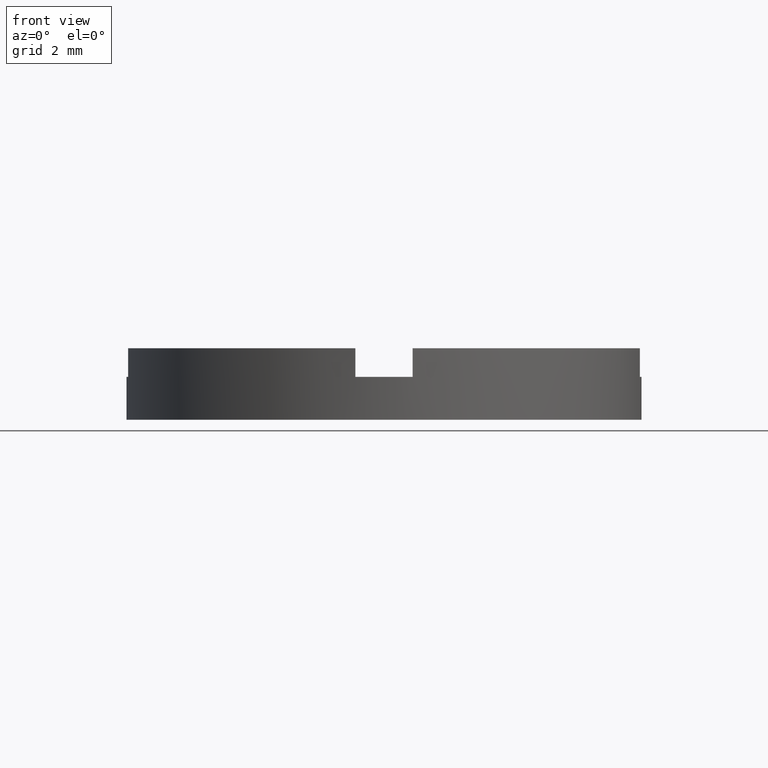
[diagram: clean part render]
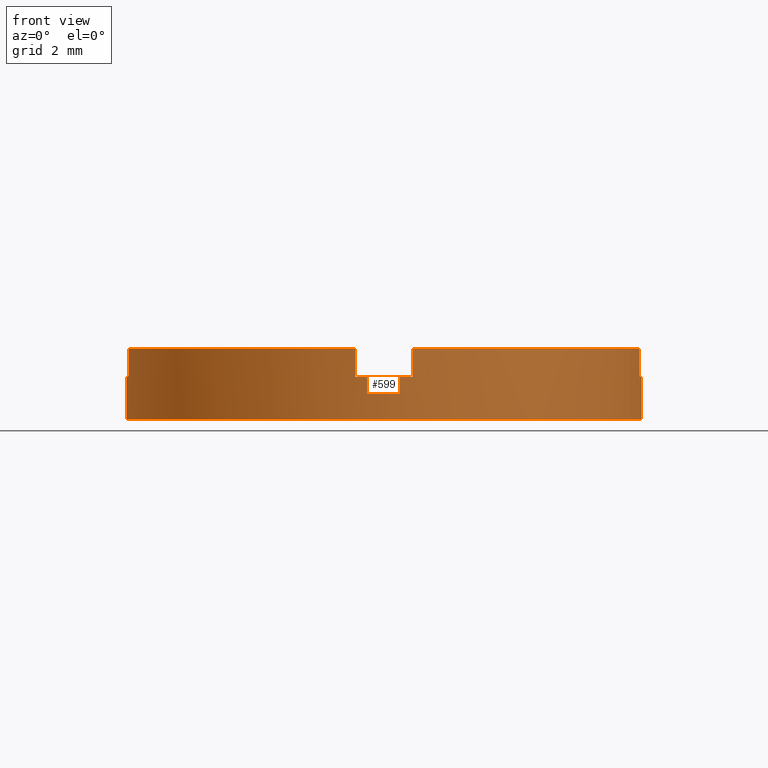
[diagram: same view with one face highlighted and labeled with its STEP entity id]
A machine part, front view. The second image highlights one B-rep face of the part: STEP entity #599.
In plain terms, the highlighted cylindrical surface (partial cylindrical patch) has radius 9 mm, axis along (-0, -0, -1).
Its self-contained STEP definition (entity closure, byte-faithful):
#15 = CARTESIAN_POINT ( 'NONE',  ( 0.000000000000000000, 0.000000000000000000, 2.500000000000000000 ) ) ;
#18 = EDGE_CURVE ( 'NONE', #570, #53, #423, .T. ) ;
#26 = DIRECTION ( 'NONE',  ( 0.000000000000000000, 0.000000000000000000, 1.000000000000000000 ) ) ;
#28 = AXIS2_PLACEMENT_3D ( 'NONE', #776, #416, #235 ) ;
#32 = CARTESIAN_POINT ( 'NONE',  ( 1.000000000000001332, -8.944271909999157444, 1.500000000000000000 ) ) ;
#34 = AXIS2_PLACEMENT_3D ( 'NONE', #534, #26, #603 ) ;
#38 = CARTESIAN_POINT ( 'NONE',  ( 8.944271909999153891, -1.000000000000034417, 1.500000000000000000 ) ) ;
#43 = ORIENTED_EDGE ( 'NONE', *, *, #505, .T. ) ;
#53 = VERTEX_POINT ( 'NONE', #602 ) ;
#65 = ORIENTED_EDGE ( 'NONE', *, *, #195, .F. ) ;
#70 = DIRECTION ( 'NONE',  ( 0.000000000000000000, 0.000000000000000000, 1.000000000000000000 ) ) ;
#76 = CARTESIAN_POINT ( 'NONE',  ( -0.9999999999999986677, -8.944271909999157444, 1.500000000000000000 ) ) ;
#100 = ORIENTED_EDGE ( 'NONE', *, *, #18, .F. ) ;
#104 = VERTEX_POINT ( 'NONE', #727 ) ;
#106 = CIRCLE ( 'NONE', #342, 9.000000000000000000 ) ;
#112 = CIRCLE ( 'NONE', #206, 9.000000000000000000 ) ;
#114 = FACE_OUTER_BOUND ( 'NONE', #412, .T. ) ;
#115 = EDGE_CURVE ( 'NONE', #411, #185, #186, .T. ) ;
#126 = CIRCLE ( 'NONE', #666, 9.000000000000000000 ) ;
#136 = DIRECTION ( 'NONE',  ( 1.000000000000000000, 0.000000000000000000, 0.000000000000000000 ) ) ;
#137 = DIRECTION ( 'NONE',  ( -0.000000000000000000, -0.000000000000000000, 1.000000000000000000 ) ) ;
#161 = VERTEX_POINT ( 'NONE', #487 ) ;
#166 = CARTESIAN_POINT ( 'NONE',  ( -8.944271909999160997, -0.9999999999999676925, 1.500000000000000000 ) ) ;
#174 = LINE ( 'NONE', #166, #193 ) ;
#185 = VERTEX_POINT ( 'NONE', #531 ) ;
#186 = LINE ( 'NONE', #76, #427 ) ;
#192 = CARTESIAN_POINT ( 'NONE',  ( 9.000000000000000000, 1.102182119232617714E-15, 1.500000000000000000 ) ) ;
#193 = VECTOR ( 'NONE', #733, 1000.000000000000000 ) ;
#195 = EDGE_CURVE ( 'NONE', #422, #161, #174, .T. ) ;
#196 = DIRECTION ( 'NONE',  ( 1.000000000000000000, 0.000000000000000000, 0.000000000000000000 ) ) ;
#202 = LINE ( 'NONE', #528, #478 ) ;
#204 = VECTOR ( 'NONE', #137, 1000.000000000000000 ) ;
#205 = LINE ( 'NONE', #32, #736 ) ;
#206 = AXIS2_PLACEMENT_3D ( 'NONE', #450, #294, #757 ) ;
#208 = LINE ( 'NONE', #601, #204 ) ;
#217 = CARTESIAN_POINT ( 'NONE',  ( 0.000000000000000000, 0.000000000000000000, 2.500000000000000000 ) ) ;
#224 = ORIENTED_EDGE ( 'NONE', *, *, #460, .F. ) ;
#234 = CARTESIAN_POINT ( 'NONE',  ( 0.000000000000000000, 0.000000000000000000, 1.500000000000000000 ) ) ;
#235 = DIRECTION ( 'NONE',  ( -1.000000000000000000, 0.000000000000000000, 0.000000000000000000 ) ) ;
#237 = DIRECTION ( 'NONE',  ( -0.000000000000000000, -0.000000000000000000, 1.000000000000000000 ) ) ;
#242 = ORIENTED_EDGE ( 'NONE', *, *, #244, .F. ) ;
#244 = EDGE_CURVE ( 'NONE', #583, #422, #476, .T. ) ;
#252 = ORIENTED_EDGE ( 'NONE', *, *, #115, .T. ) ;
#259 = DIRECTION ( 'NONE',  ( -0.000000000000000000, -0.000000000000000000, 1.000000000000000000 ) ) ;
#262 = DIRECTION ( 'NONE',  ( -0.000000000000000000, 0.000000000000000000, 1.000000000000000000 ) ) ;
#272 = CARTESIAN_POINT ( 'NONE',  ( -8.944271909999160997, -0.9999999999999676925, 1.500000000000000000 ) ) ;
#280 = AXIS2_PLACEMENT_3D ( 'NONE', #234, #262, #408 ) ;
#292 = EDGE_CURVE ( 'NONE', #436, #104, #205, .T. ) ;
#294 = DIRECTION ( 'NONE',  ( -0.000000000000000000, 0.000000000000000000, 1.000000000000000000 ) ) ;
#299 = CARTESIAN_POINT ( 'NONE',  ( -0.9999999999999986677, -8.944271909999157444, 1.500000000000000000 ) ) ;
#309 = VERTEX_POINT ( 'NONE', #485 ) ;
#326 = EDGE_CURVE ( 'NONE', #583, #309, #202, .T. ) ;
#342 = AXIS2_PLACEMENT_3D ( 'NONE', #217, #612, #136 ) ;
#365 = CIRCLE ( 'NONE', #34, 9.000000000000000000 ) ;
#372 = CARTESIAN_POINT ( 'NONE',  ( 8.944271909999153891, -1.000000000000034417, 2.500000000000000000 ) ) ;
#376 = CARTESIAN_POINT ( 'NONE',  ( 1.000000000000001332, -8.944271909999157444, 1.500000000000000000 ) ) ;
#390 = EDGE_CURVE ( 'NONE', #682, #691, #208, .T. ) ;
#408 = DIRECTION ( 'NONE',  ( 1.000000000000000000, 0.000000000000000000, 0.000000000000000000 ) ) ;
#411 = VERTEX_POINT ( 'NONE', #299 ) ;
#412 = EDGE_LOOP ( 'NONE', ( #100, #778, #573, #773, #609, #224, #252, #506, #65, #242, #591, #43 ) ) ;
#416 = DIRECTION ( 'NONE',  ( -0.000000000000000000, -0.000000000000000000, -1.000000000000000000 ) ) ;
#422 = VERTEX_POINT ( 'NONE', #272 ) ;
#423 = LINE ( 'NONE', #739, #443 ) ;
#427 = VECTOR ( 'NONE', #259, 1000.000000000000000 ) ;
#436 = VERTEX_POINT ( 'NONE', #376 ) ;
#443 = VECTOR ( 'NONE', #779, 1000.000000000000000 ) ;
#450 = CARTESIAN_POINT ( 'NONE',  ( 0.000000000000000000, 0.000000000000000000, 1.500000000000000000 ) ) ;
#460 = EDGE_CURVE ( 'NONE', #411, #436, #634, .T. ) ;
#476 = CIRCLE ( 'NONE', #730, 9.000000000000000000 ) ;
#478 = VECTOR ( 'NONE', #562, 1000.000000000000000 ) ;
#485 = CARTESIAN_POINT ( 'NONE',  ( -9.000000000000000000, 0.000000000000000000, 0.000000000000000000 ) ) ;
#487 = CARTESIAN_POINT ( 'NONE',  ( -8.944271909999160997, -0.9999999999999676925, 2.500000000000000000 ) ) ;
#505 = EDGE_CURVE ( 'NONE', #309, #53, #365, .T. ) ;
#506 = ORIENTED_EDGE ( 'NONE', *, *, #652, .F. ) ;
#528 = CARTESIAN_POINT ( 'NONE',  ( -9.000000000000000000, 0.000000000000000000, 2.500000000000000000 ) ) ;
#531 = CARTESIAN_POINT ( 'NONE',  ( -0.9999999999999986677, -8.944271909999157444, 2.500000000000000000 ) ) ;
#533 = CARTESIAN_POINT ( 'NONE',  ( 0.000000000000000000, 0.000000000000000000, 1.500000000000000000 ) ) ;
#534 = CARTESIAN_POINT ( 'NONE',  ( 0.000000000000000000, 0.000000000000000000, 0.000000000000000000 ) ) ;
#560 = DIRECTION ( 'NONE',  ( 1.000000000000000000, 0.000000000000000000, 0.000000000000000000 ) ) ;
#562 = DIRECTION ( 'NONE',  ( -0.000000000000000000, -0.000000000000000000, -1.000000000000000000 ) ) ;
#570 = VERTEX_POINT ( 'NONE', #192 ) ;
#573 = ORIENTED_EDGE ( 'NONE', *, *, #390, .T. ) ;
#583 = VERTEX_POINT ( 'NONE', #653 ) ;
#591 = ORIENTED_EDGE ( 'NONE', *, *, #326, .T. ) ;
#599 = ADVANCED_FACE ( 'NONE', ( #114 ), #672, .T. ) ;
#601 = CARTESIAN_POINT ( 'NONE',  ( 8.944271909999153891, -1.000000000000034417, 1.500000000000000000 ) ) ;
#602 = CARTESIAN_POINT ( 'NONE',  ( 9.000000000000000000, 1.102182119232617714E-15, 0.000000000000000000 ) ) ;
#603 = DIRECTION ( 'NONE',  ( 1.000000000000000000, 0.000000000000000000, 0.000000000000000000 ) ) ;
#609 = ORIENTED_EDGE ( 'NONE', *, *, #292, .F. ) ;
#612 = DIRECTION ( 'NONE',  ( 0.000000000000000000, 0.000000000000000000, 1.000000000000000000 ) ) ;
#634 = CIRCLE ( 'NONE', #280, 9.000000000000000000 ) ;
#648 = DIRECTION ( 'NONE',  ( -0.000000000000000000, 0.000000000000000000, 1.000000000000000000 ) ) ;
#652 = EDGE_CURVE ( 'NONE', #161, #185, #106, .T. ) ;
#653 = CARTESIAN_POINT ( 'NONE',  ( -9.000000000000000000, 0.000000000000000000, 1.500000000000000000 ) ) ;
#666 = AXIS2_PLACEMENT_3D ( 'NONE', #15, #70, #196 ) ;
#672 = CYLINDRICAL_SURFACE ( 'NONE', #28, 9.000000000000000000 ) ;
#682 = VERTEX_POINT ( 'NONE', #38 ) ;
#684 = EDGE_CURVE ( 'NONE', #682, #570, #112, .T. ) ;
#691 = VERTEX_POINT ( 'NONE', #372 ) ;
#727 = CARTESIAN_POINT ( 'NONE',  ( 1.000000000000001332, -8.944271909999157444, 2.500000000000000000 ) ) ;
#730 = AXIS2_PLACEMENT_3D ( 'NONE', #533, #648, #560 ) ;
#733 = DIRECTION ( 'NONE',  ( -0.000000000000000000, -0.000000000000000000, 1.000000000000000000 ) ) ;
#736 = VECTOR ( 'NONE', #237, 1000.000000000000000 ) ;
#739 = CARTESIAN_POINT ( 'NONE',  ( 9.000000000000000000, 1.102182119232617714E-15, 2.500000000000000000 ) ) ;
#743 = EDGE_CURVE ( 'NONE', #104, #691, #126, .T. ) ;
#757 = DIRECTION ( 'NONE',  ( 1.000000000000000000, 0.000000000000000000, 0.000000000000000000 ) ) ;
#773 = ORIENTED_EDGE ( 'NONE', *, *, #743, .F. ) ;
#776 = CARTESIAN_POINT ( 'NONE',  ( 0.000000000000000000, 0.000000000000000000, 2.500000000000000000 ) ) ;
#778 = ORIENTED_EDGE ( 'NONE', *, *, #684, .F. ) ;
#779 = DIRECTION ( 'NONE',  ( -0.000000000000000000, -0.000000000000000000, -1.000000000000000000 ) ) ;